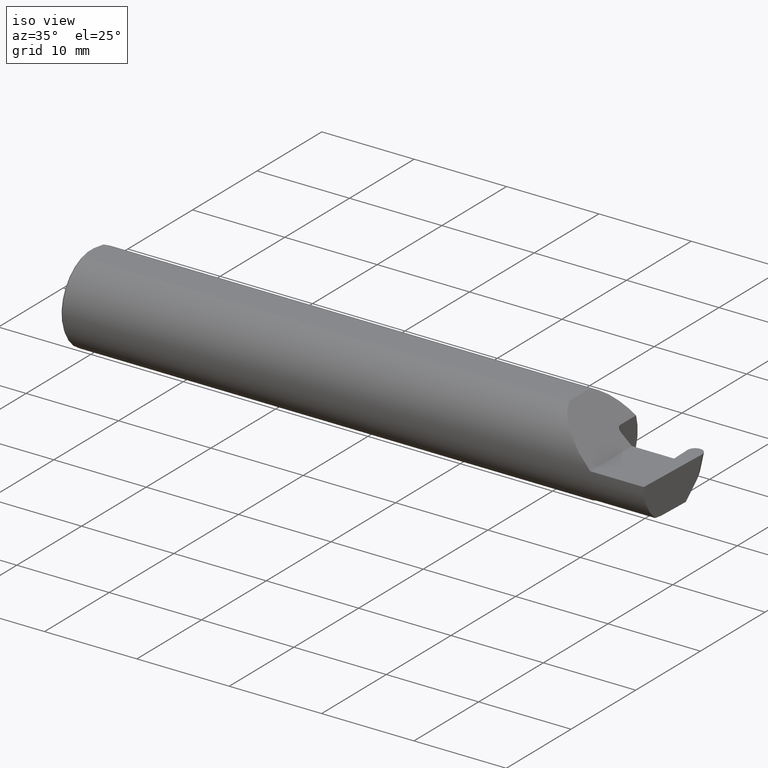
[diagram: clean part render]
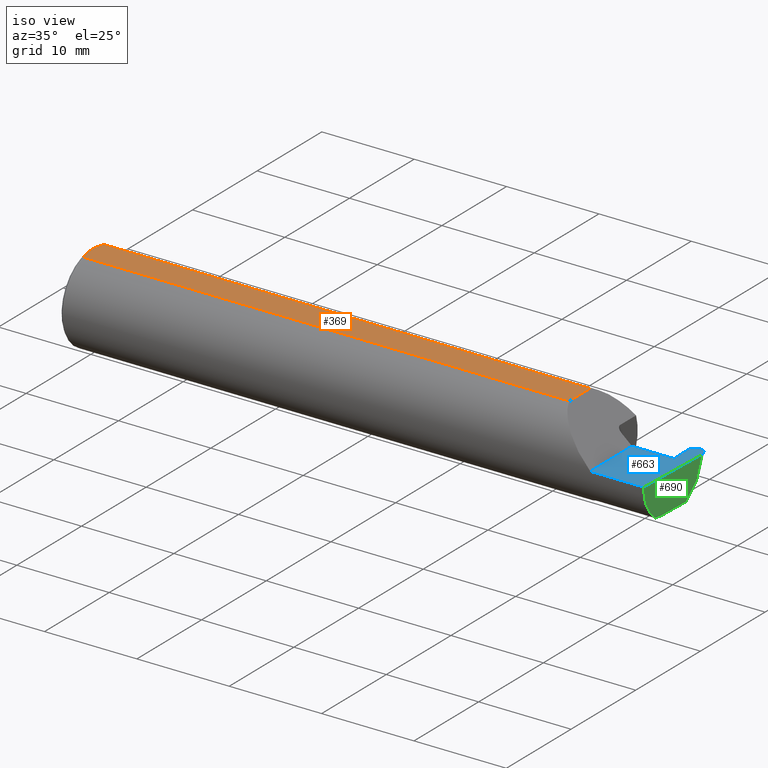
[diagram: same view with three faces highlighted in distinct colors, each labeled with its STEP entity id]
A machine part, iso view with three faces highlighted in distinct colors.
Their STEP definitions:

[orange] entity #369 — the highlighted planar face has unit normal (0, 0, 1).
#24 = CARTESIAN_POINT ( 'NONE',  ( 2.083649999999998670, -0.2500000000000000555, 0.1763499999999999235 ) ) ;
#31 = ORIENTED_EDGE ( 'NONE', *, *, #59, .T. ) ;
#44 = VERTEX_POINT ( 'NONE', #61 ) ;
#56 = CARTESIAN_POINT ( 'NONE',  ( 0.000000000000000000, 0.06325108694718235836, 0.1763499999999999235 ) ) ;
#59 = EDGE_CURVE ( 'NONE', #44, #404, #452, .T. ) ;
#60 = CARTESIAN_POINT ( 'NONE',  ( 2.083649999999998670, -0.06325108694718283020, 0.1763499999999999235 ) ) ;
#61 = CARTESIAN_POINT ( 'NONE',  ( 2.083649999999998670, 0.06325108694718283020, 0.1763499999999999235 ) ) ;
#65 = CARTESIAN_POINT ( 'NONE',  ( 0.009999999999999346217, -0.06325108694718235836, 0.1763499999999999235 ) ) ;
#75 = CARTESIAN_POINT ( 'NONE',  ( 0.001616639753276218755, 0.03405189565400963680, 0.1763499999999999235 ) ) ;
#97 = B_SPLINE_CURVE_WITH_KNOTS ( 'NONE', 3,
 ( #128, #253, #307, #662 ),
 .UNSPECIFIED., .F., .F.,
 ( 4, 4 ),
 ( 0.009771445421851449736, 0.01092787937989102981 ),
 .UNSPECIFIED. ) ;
#128 = CARTESIAN_POINT ( 'NONE',  ( 0.009999999999999346217, -0.06325108694718235836, 0.1763499999999999235 ) ) ;
#158 = B_SPLINE_CURVE_WITH_KNOTS ( 'NONE', 3,
 ( #456, #75, #311, #302 ),
 .UNSPECIFIED., .F., .F.,
 ( 4, 4 ),
 ( 0.01188664626022267051, 0.01304646959483758001 ),
 .UNSPECIFIED. ) ;
#161 = VERTEX_POINT ( 'NONE', #196 ) ;
#163 = PLANE ( 'NONE',  #595 ) ;
#166 = VECTOR ( 'NONE', #584, 39.37007874015748143 ) ;
#196 = CARTESIAN_POINT ( 'NONE',  ( 0.000000000000000000, 0.01880691362239451242, 0.1763499999999999235 ) ) ;
#211 = DIRECTION ( 'NONE',  ( 0.000000000000000000, 0.000000000000000000, 1.000000000000000000 ) ) ;
#223 = CARTESIAN_POINT ( 'NONE',  ( 0.009999999999999346217, 0.06325108694718235836, 0.1763499999999999235 ) ) ;
#244 = LINE ( 'NONE', #24, #506 ) ;
#253 = CARTESIAN_POINT ( 'NONE',  ( 0.005151108632379595466, -0.04888864921576189376, 0.1763499999999999235 ) ) ;
#255 = ORIENTED_EDGE ( 'NONE', *, *, #634, .F. ) ;
#258 = ORIENTED_EDGE ( 'NONE', *, *, #608, .T. ) ;
#264 = FACE_OUTER_BOUND ( 'NONE', #617, .T. ) ;
#296 = DIRECTION ( 'NONE',  ( -1.000000000000000000, -0.000000000000000000, -0.000000000000000000 ) ) ;
#302 = CARTESIAN_POINT ( 'NONE',  ( 0.009999999999999346217, 0.06325108694718235836, 0.1763499999999999235 ) ) ;
#307 = CARTESIAN_POINT ( 'NONE',  ( 0.001595548104417217512, -0.03385300050298979679, 0.1763499999999999235 ) ) ;
#311 = CARTESIAN_POINT ( 'NONE',  ( 0.005155213631852355663, 0.04890080824240217866, 0.1763499999999999235 ) ) ;
#348 = EDGE_CURVE ( 'NONE', #495, #454, #642, .T. ) ;
#369 = ADVANCED_FACE ( 'NONE', ( #264 ), #163, .T. ) ;
#389 = DIRECTION ( 'NONE',  ( -0.000000000000000000, 1.000000000000000000, -0.000000000000000000 ) ) ;
#392 = VECTOR ( 'NONE', #296, 39.37007874015748143 ) ;
#404 = VERTEX_POINT ( 'NONE', #223 ) ;
#422 = EDGE_CURVE ( 'NONE', #562, #161, #557, .T. ) ;
#426 = CARTESIAN_POINT ( 'NONE',  ( 0.000000000000000000, -0.06325108694718235836, 0.1763499999999999235 ) ) ;
#434 = ORIENTED_EDGE ( 'NONE', *, *, #422, .F. ) ;
#450 = ORIENTED_EDGE ( 'NONE', *, *, #544, .F. ) ;
#452 = LINE ( 'NONE', #56, #392 ) ;
#454 = VERTEX_POINT ( 'NONE', #60 ) ;
#456 = CARTESIAN_POINT ( 'NONE',  ( 0.000000000000000000, 0.01880691362239451242, 0.1763499999999999235 ) ) ;
#495 = VERTEX_POINT ( 'NONE', #65 ) ;
#501 = CARTESIAN_POINT ( 'NONE',  ( 0.000000000000000000, 0.1873499999999998500, 0.1763499999999999235 ) ) ;
#506 = VECTOR ( 'NONE', #667, 39.37007874015748143 ) ;
#544 = EDGE_CURVE ( 'NONE', #495, #562, #97, .T. ) ;
#557 = LINE ( 'NONE', #501, #705 ) ;
#562 = VERTEX_POINT ( 'NONE', #622 ) ;
#584 = DIRECTION ( 'NONE',  ( 1.000000000000000000, 0.000000000000000000, 0.000000000000000000 ) ) ;
#588 = DIRECTION ( 'NONE',  ( 1.000000000000000000, 0.000000000000000000, -0.000000000000000000 ) ) ;
#595 = AXIS2_PLACEMENT_3D ( 'NONE', #697, #211, #588 ) ;
#608 = EDGE_CURVE ( 'NONE', #454, #44, #244, .T. ) ;
#617 = EDGE_LOOP ( 'NONE', ( #704, #258, #31, #255, #434, #450 ) ) ;
#622 = CARTESIAN_POINT ( 'NONE',  ( 0.000000000000000000, -0.01880691362239451242, 0.1763499999999999235 ) ) ;
#634 = EDGE_CURVE ( 'NONE', #161, #404, #158, .T. ) ;
#642 = LINE ( 'NONE', #426, #166 ) ;
#662 = CARTESIAN_POINT ( 'NONE',  ( 0.000000000000000000, -0.01880691362239451242, 0.1763499999999999235 ) ) ;
#667 = DIRECTION ( 'NONE',  ( 0.000000000000000000, 1.000000000000000000, 0.000000000000000000 ) ) ;
#697 = CARTESIAN_POINT ( 'NONE',  ( 2.876828993045917215, 0.1873499999999998500, 0.1763499999999999235 ) ) ;
#704 = ORIENTED_EDGE ( 'NONE', *, *, #348, .T. ) ;
#705 = VECTOR ( 'NONE', #389, 39.37007874015748143 ) ;

[blue] entity #663 — the highlighted planar face has unit normal (-0, 0, -1).
#11 = CARTESIAN_POINT ( 'NONE',  ( 2.260000000000000231, -0.2500000000000000555, 2.939152317953647352E-17 ) ) ;
#19 = DIRECTION ( 'NONE',  ( -0.000000000000000000, 1.000000000000000000, -0.000000000000000000 ) ) ;
#29 = CARTESIAN_POINT ( 'NONE',  ( 2.436880131316879083, 0.1519786885938757270, 0.000000000000000000 ) ) ;
#35 = CARTESIAN_POINT ( 'NONE',  ( 2.499932917084233264, 0.1506083980881225692, 0.000000000000000000 ) ) ;
#36 = VERTEX_POINT ( 'NONE', #660 ) ;
#40 = CARTESIAN_POINT ( 'NONE',  ( 2.488131149766799943, -0.1873499999999999888, 0.000000000000000000 ) ) ;
#48 = ORIENTED_EDGE ( 'NONE', *, *, #656, .F. ) ;
#52 = ORIENTED_EDGE ( 'NONE', *, *, #590, .F. ) ;
#57 = VECTOR ( 'NONE', #367, 39.37007874015748143 ) ;
#64 =( BOUNDED_CURVE ( )  B_SPLINE_CURVE ( 3, ( #35, #83, #465, #671 ),
 .UNSPECIFIED., .F., .F. ) 
 B_SPLINE_CURVE_WITH_KNOTS ( ( 4, 4 ),
 ( 1.627103621474502049, 3.225696776093215590 ),
 .UNSPECIFIED. ) 
 CURVE ( )  GEOMETRIC_REPRESENTATION_ITEM ( )  RATIONAL_B_SPLINE_CURVE ( ( 1.000000000000000000, 0.7981407609938108161, 0.7981407609938108161, 1.000000000000000000 ) ) 
 REPRESENTATION_ITEM ( '' )  );
#71 = LINE ( 'NONE', #513, #552 ) ;
#73 = CARTESIAN_POINT ( 'NONE',  ( 2.436235694025149279, 0.1704329581048291409, 7.809760431069554296E-18 ) ) ;
#76 = LINE ( 'NONE', #191, #374 ) ;
#77 = VERTEX_POINT ( 'NONE', #549 ) ;
#80 = VECTOR ( 'NONE', #203, 39.37007874015748143 ) ;
#81 = DIRECTION ( 'NONE',  ( -1.000000000000000000, 0.000000000000000000, 1.224646799147353947E-16 ) ) ;
#83 = CARTESIAN_POINT ( 'NONE',  ( 2.500625205974851273, 0.1704329581048291409, -1.247844596711688058E-17 ) ) ;
#108 = ORIENTED_EDGE ( 'NONE', *, *, #640, .F. ) ;
#110 = ORIENTED_EDGE ( 'NONE', *, *, #222, .F. ) ;
#111 = EDGE_CURVE ( 'NONE', #368, #132, #76, .T. ) ;
#132 = VERTEX_POINT ( 'NONE', #628 ) ;
#135 = LINE ( 'NONE', #616, #138 ) ;
#138 = VECTOR ( 'NONE', #353, 39.37007874015747433 ) ;
#146 = EDGE_CURVE ( 'NONE', #305, #36, #64, .T. ) ;
#150 = CARTESIAN_POINT ( 'NONE',  ( 2.499932917084233264, 0.1506083980881225692, 0.000000000000000000 ) ) ;
#162 = EDGE_CURVE ( 'NONE', #324, #77, #665, .T. ) ;
#189 = LINE ( 'NONE', #29, #80 ) ;
#191 = CARTESIAN_POINT ( 'NONE',  ( 3.749399456654646757E-32, -0.1873499999999999610, 3.061616997868383634E-16 ) ) ;
#203 = DIRECTION ( 'NONE',  ( -0.03489949670249346131, 0.9993908270190959842, -0.000000000000000000 ) ) ;
#210 = EDGE_CURVE ( 'NONE', #324, #36, #410, .T. ) ;
#222 = EDGE_CURVE ( 'NONE', #305, #368, #135, .T. ) ;
#233 = LINE ( 'NONE', #295, #320 ) ;
#257 = CARTESIAN_POINT ( 'NONE',  ( -3.937007874019685528E-05, 0.1846500000000000363, 0.000000000000000000 ) ) ;
#274 = ORIENTED_EDGE ( 'NONE', *, *, #162, .T. ) ;
#287 = DIRECTION ( 'NONE',  ( 1.000000000000000000, 7.488084056613327882E-15, -0.000000000000000000 ) ) ;
#295 = CARTESIAN_POINT ( 'NONE',  ( 2.439859874782298377, 0.06664999999999998703, 0.000000000000000000 ) ) ;
#300 = DIRECTION ( 'NONE',  ( -1.000000000000000000, -0.000000000000000000, -0.000000000000000000 ) ) ;
#305 = VERTEX_POINT ( 'NONE', #150 ) ;
#320 = VECTOR ( 'NONE', #287, 39.37007874015748143 ) ;
#324 = VERTEX_POINT ( 'NONE', #376 ) ;
#353 = DIRECTION ( 'NONE',  ( -0.03489949670249308661, -0.9993908270190960952, 0.000000000000000000 ) ) ;
#355 = CARTESIAN_POINT ( 'NONE',  ( 2.436927982915767288, 0.1506083980881225415, 0.000000000000000000 ) ) ;
#366 = DIRECTION ( 'NONE',  ( -1.224646799147353947E-16, 0.000000000000000000, -1.000000000000000000 ) ) ;
#367 = DIRECTION ( 'NONE',  ( 1.000000000000000000, -0.000000000000000000, -0.000000000000000000 ) ) ;
#368 = VERTEX_POINT ( 'NONE', #40 ) ;
#370 = CARTESIAN_POINT ( 'NONE',  ( 2.430739223982273156, 0.06664999999999991764, 0.000000000000000000 ) ) ;
#372 = ORIENTED_EDGE ( 'NONE', *, *, #210, .F. ) ;
#374 = VECTOR ( 'NONE', #300, 39.37007874015748143 ) ;
#376 = CARTESIAN_POINT ( 'NONE',  ( 2.468139380300150343, 0.1846500000000000363, 0.000000000000000000 ) ) ;
#391 = EDGE_CURVE ( 'NONE', #691, #411, #233, .T. ) ;
#410 = LINE ( 'NONE', #257, #57 ) ;
#411 = VERTEX_POINT ( 'NONE', #599 ) ;
#423 = ORIENTED_EDGE ( 'NONE', *, *, #111, .F. ) ;
#446 = EDGE_LOOP ( 'NONE', ( #372, #274, #52, #457, #108, #48, #423, #110, #673 ) ) ;
#457 = ORIENTED_EDGE ( 'NONE', *, *, #391, .F. ) ;
#465 = CARTESIAN_POINT ( 'NONE',  ( 2.487590162989234077, 0.1846499999999998698, -1.088211360020845268E-17 ) ) ;
#472 = FACE_OUTER_BOUND ( 'NONE', #446, .T. ) ;
#475 = AXIS2_PLACEMENT_3D ( 'NONE', #615, #366, #81 ) ;
#487 = VECTOR ( 'NONE', #19, 39.37007874015748143 ) ;
#513 = CARTESIAN_POINT ( 'NONE',  ( 2.200000000000000178, 0.06664999999999995928, 3.673940397442061963E-17 ) ) ;
#517 = LINE ( 'NONE', #11, #487 ) ;
#549 = CARTESIAN_POINT ( 'NONE',  ( 2.436927982915767288, 0.1506083980881225415, 0.000000000000000000 ) ) ;
#552 = VECTOR ( 'NONE', #670, 39.37007874015748143 ) ;
#564 = CARTESIAN_POINT ( 'NONE',  ( 2.468139380300150343, 0.1846500000000000363, 0.000000000000000000 ) ) ;
#568 = CARTESIAN_POINT ( 'NONE',  ( 2.449270737010766030, 0.1846499999999998975, 6.213428064161130250E-18 ) ) ;
#570 = PLANE ( 'NONE',  #475 ) ;
#590 = EDGE_CURVE ( 'NONE', #411, #77, #189, .T. ) ;
#599 = CARTESIAN_POINT ( 'NONE',  ( 2.439859874782298377, 0.06664999999999998703, 0.000000000000000000 ) ) ;
#615 = CARTESIAN_POINT ( 'NONE',  ( 2.500000000000000000, -0.2500000000000000555, 0.000000000000000000 ) ) ;
#616 = CARTESIAN_POINT ( 'NONE',  ( 2.499980768683121024, 0.1519786885938757826, 0.000000000000000000 ) ) ;
#626 = CARTESIAN_POINT ( 'NONE',  ( 2.260000000000000231, 0.06664999999999991764, 2.939152317953647352E-17 ) ) ;
#628 = CARTESIAN_POINT ( 'NONE',  ( 2.260000000000000231, -0.1873499999999999888, 2.939152317953647352E-17 ) ) ;
#640 = EDGE_CURVE ( 'NONE', #647, #691, #71, .T. ) ;
#647 = VERTEX_POINT ( 'NONE', #626 ) ;
#656 = EDGE_CURVE ( 'NONE', #132, #647, #517, .T. ) ;
#660 = CARTESIAN_POINT ( 'NONE',  ( 2.468721519699850209, 0.1846500000000000363, 0.000000000000000000 ) ) ;
#663 = ADVANCED_FACE ( 'NONE', ( #472 ), #570, .F. ) ;
#665 =( BOUNDED_CURVE ( )  B_SPLINE_CURVE ( 3, ( #564, #568, #73, #355 ),
 .UNSPECIFIED., .F., .F. ) 
 B_SPLINE_CURVE_WITH_KNOTS ( ( 4, 4 ),
 ( 3.057488531086369754, 4.656081685705084183 ),
 .UNSPECIFIED. ) 
 CURVE ( )  GEOMETRIC_REPRESENTATION_ITEM ( )  RATIONAL_B_SPLINE_CURVE ( ( 1.000000000000000000, 0.7981407609938104830, 0.7981407609938104830, 1.000000000000000000 ) ) 
 REPRESENTATION_ITEM ( '' )  );
#670 = DIRECTION ( 'NONE',  ( 1.000000000000000000, 5.045929899059384297E-16, 0.000000000000000000 ) ) ;
#671 = CARTESIAN_POINT ( 'NONE',  ( 2.468721519699850209, 0.1846500000000000363, 0.000000000000000000 ) ) ;
#673 = ORIENTED_EDGE ( 'NONE', *, *, #146, .T. ) ;
#691 = VERTEX_POINT ( 'NONE', #370 ) ;

[green] entity #690 — the highlighted planar face has unit normal (-0.9992, 0.0349, 0.0175).
#2 = DIRECTION ( 'NONE',  ( -0.03489949670249307273, -0.9993908270190959842, 0.000000000000000000 ) ) ;
#39 =( BOUNDED_CURVE ( )  B_SPLINE_CURVE ( 3, ( #165, #644, #545, #101 ),
 .UNSPECIFIED., .F., .F. ) 
 B_SPLINE_CURVE_WITH_KNOTS ( ( 4, 4 ),
 ( 0.8789888184544107919, 1.107026853503860098 ),
 .UNSPECIFIED. ) 
 CURVE ( )  GEOMETRIC_REPRESENTATION_ITEM ( )  RATIONAL_B_SPLINE_CURVE ( ( 1.000000000000000000, 0.9956712472009928705, 0.9956712472009928705, 1.000000000000000000 ) ) 
 REPRESENTATION_ITEM ( '' )  );
#40 = CARTESIAN_POINT ( 'NONE',  ( 2.488131149766799943, -0.1873499999999999888, 0.000000000000000000 ) ) ;
#54 = EDGE_CURVE ( 'NONE', #252, #368, #698, .T. ) ;
#55 = VECTOR ( 'NONE', #668, 39.37007874015748143 ) ;
#63 = CARTESIAN_POINT ( 'NONE',  ( 2.487084196965268390, -0.1623470442677540371, -0.1099340280425340211 ) ) ;
#101 = CARTESIAN_POINT ( 'NONE',  ( 2.489143054109411057, -0.08334999999999892495, -0.1500000000000000500 ) ) ;
#104 = CARTESIAN_POINT ( 'NONE',  ( 2.497385173767517230, 0.1218770478189730028, -0.08842600372417715182 ) ) ;
#112 = LINE ( 'NONE', #393, #459 ) ;
#135 = LINE ( 'NONE', #616, #138 ) ;
#138 = VECTOR ( 'NONE', #353, 39.37007874015747433 ) ;
#150 = CARTESIAN_POINT ( 'NONE',  ( 2.499932917084233264, 0.1506083980881225692, 0.000000000000000000 ) ) ;
#165 = CARTESIAN_POINT ( 'NONE',  ( 2.488026713523223243, -0.1172600179964004286, -0.1461167706989304482 ) ) ;
#205 = VERTEX_POINT ( 'NONE', #469 ) ;
#207 = DIRECTION ( 'NONE',  ( -0.9992386149554828290, 0.03489418134010577321, 0.01745240643728358798 ) ) ;
#222 = EDGE_CURVE ( 'NONE', #305, #368, #135, .T. ) ;
#229 = EDGE_CURVE ( 'NONE', #335, #343, #360, .T. ) ;
#247 = VECTOR ( 'NONE', #339, 39.37007874015748143 ) ;
#252 = VERTEX_POINT ( 'NONE', #646 ) ;
#269 = EDGE_CURVE ( 'NONE', #252, #205, #39, .T. ) ;
#305 = VERTEX_POINT ( 'NONE', #150 ) ;
#335 = VERTEX_POINT ( 'NONE', #104 ) ;
#339 = DIRECTION ( 'NONE',  ( 0.02739170151059983765, 0.3089010440752013587, 0.9506996579664918068 ) ) ;
#340 = CARTESIAN_POINT ( 'NONE',  ( 2.487121452143544964, -0.1873499999999999610, -0.05781030015605127109 ) ) ;
#343 = VERTEX_POINT ( 'NONE', #539 ) ;
#353 = DIRECTION ( 'NONE',  ( -0.03489949670249308661, -0.9993908270190960952, 0.000000000000000000 ) ) ;
#360 = LINE ( 'NONE', #461, #55 ) ;
#368 = VERTEX_POINT ( 'NONE', #40 ) ;
#390 = EDGE_LOOP ( 'NONE', ( #701, #485, #490, #586, #561, #479 ) ) ;
#393 = CARTESIAN_POINT ( 'NONE',  ( 2.489440290287315172, -0.07483826952468530802, -0.1500000000000000500 ) ) ;
#394 = CARTESIAN_POINT ( 'NONE',  ( 2.488026713523223243, -0.1172600179964004286, -0.1461167706989304482 ) ) ;
#399 = CARTESIAN_POINT ( 'NONE',  ( 2.488131149766799943, -0.1873499999999999888, 0.000000000000000000 ) ) ;
#418 = AXIS2_PLACEMENT_3D ( 'NONE', #476, #207, #535 ) ;
#435 = FACE_OUTER_BOUND ( 'NONE', #390, .T. ) ;
#453 = CARTESIAN_POINT ( 'NONE',  ( 2.499944547461123268, 0.1507395558974708727, 0.0004036622306032537221 ) ) ;
#459 = VECTOR ( 'NONE', #2, 39.37007874015748854 ) ;
#461 = CARTESIAN_POINT ( 'NONE',  ( 2.496600995966793857, 0.1069079586625579503, -0.1033950928805923708 ) ) ;
#469 = CARTESIAN_POINT ( 'NONE',  ( 2.489143054109411057, -0.08334999999999892495, -0.1500000000000000500 ) ) ;
#476 = CARTESIAN_POINT ( 'NONE',  ( 2.499980768683121024, 0.1519786885938757826, 0.000000000000000000 ) ) ;
#479 = ORIENTED_EDGE ( 'NONE', *, *, #496, .F. ) ;
#481 = PLANE ( 'NONE',  #418 ) ;
#485 = ORIENTED_EDGE ( 'NONE', *, *, #525, .T. ) ;
#490 = ORIENTED_EDGE ( 'NONE', *, *, #222, .T. ) ;
#496 = EDGE_CURVE ( 'NONE', #343, #205, #112, .T. ) ;
#525 = EDGE_CURVE ( 'NONE', #335, #305, #604, .T. ) ;
#535 = DIRECTION ( 'NONE',  ( -0.03489949670249307273, -0.9993908270190959842, 0.000000000000000000 ) ) ;
#539 = CARTESIAN_POINT ( 'NONE',  ( 2.494159529209134973, 0.06030305154315081240, -0.1500000000000000500 ) ) ;
#545 = CARTESIAN_POINT ( 'NONE',  ( 2.488744025780163849, -0.09477667630339342564, -0.1500000000000001887 ) ) ;
#561 = ORIENTED_EDGE ( 'NONE', *, *, #269, .T. ) ;
#586 = ORIENTED_EDGE ( 'NONE', *, *, #54, .F. ) ;
#604 = LINE ( 'NONE', #453, #247 ) ;
#616 = CARTESIAN_POINT ( 'NONE',  ( 2.499980768683121024, 0.1519786885938757826, 0.000000000000000000 ) ) ;
#644 = CARTESIAN_POINT ( 'NONE',  ( 2.488370294460940269, -0.1061291577212404302, -0.1486999626928448281 ) ) ;
#646 = CARTESIAN_POINT ( 'NONE',  ( 2.488026713523223243, -0.1172600179964004286, -0.1461167706989304482 ) ) ;
#668 = DIRECTION ( 'NONE',  ( -0.03701744261649735773, -0.7066221440565398915, -0.7066221440565481071 ) ) ;
#690 = ADVANCED_FACE ( 'NONE', ( #435 ), #481, .F. ) ;
#698 =( BOUNDED_CURVE ( )  B_SPLINE_CURVE ( 3, ( #394, #63, #340, #399 ),
 .UNSPECIFIED., .F., .T. ) 
 B_SPLINE_CURVE_WITH_KNOTS ( ( 4, 4 ),
 ( 5.852427379562186616, 6.746954780470635349 ),
 .UNSPECIFIED. ) 
 CURVE ( )  GEOMETRIC_REPRESENTATION_ITEM ( )  RATIONAL_B_SPLINE_CURVE ( ( 1.000000000000000000, 0.9344226172588800949, 0.9344226172588800949, 1.000000000000000000 ) ) 
 REPRESENTATION_ITEM ( '' )  );
#701 = ORIENTED_EDGE ( 'NONE', *, *, #229, .F. ) ;